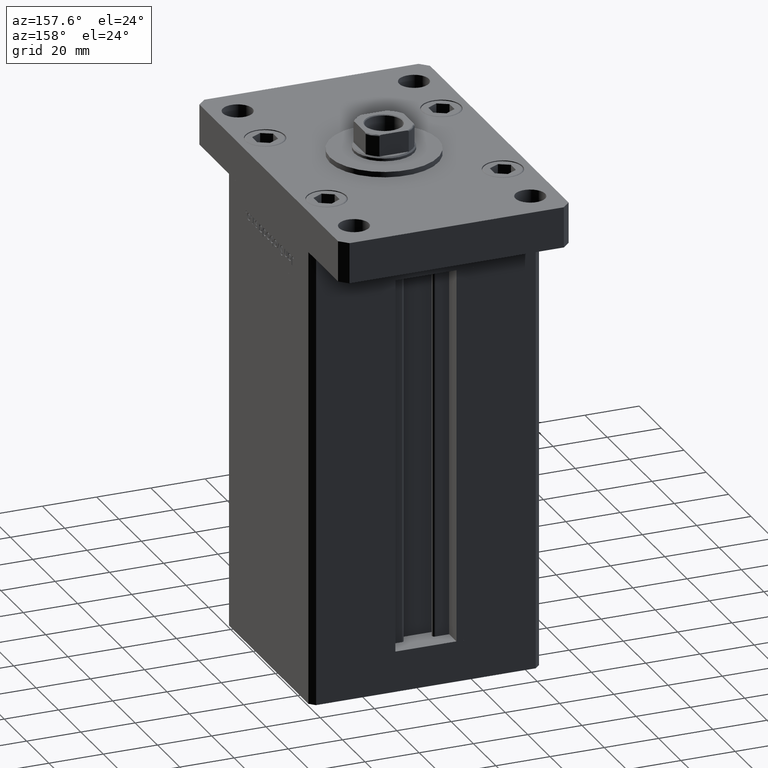
[diagram: clean part render]
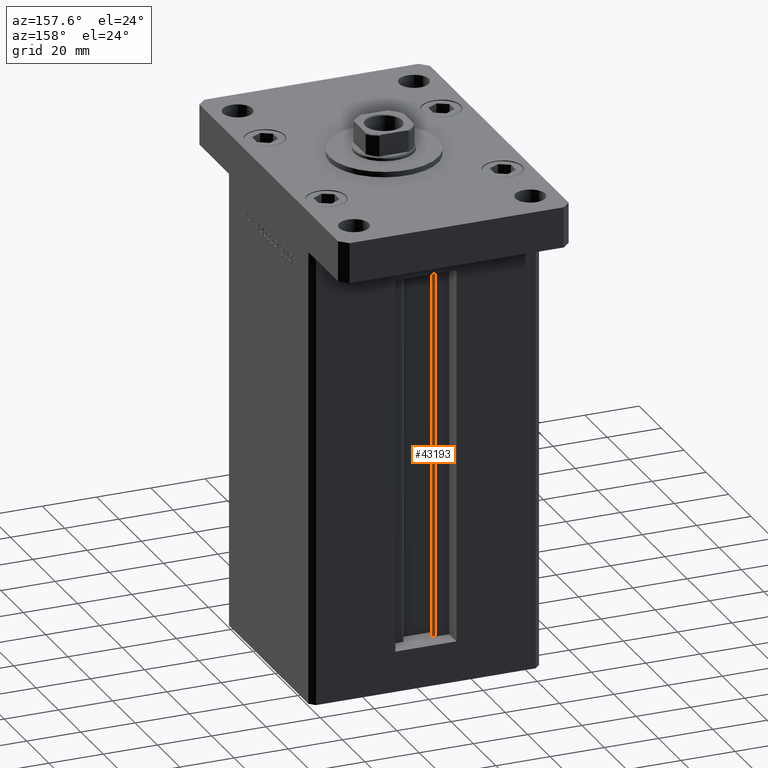
[diagram: same view with one face highlighted and labeled with its STEP entity id]
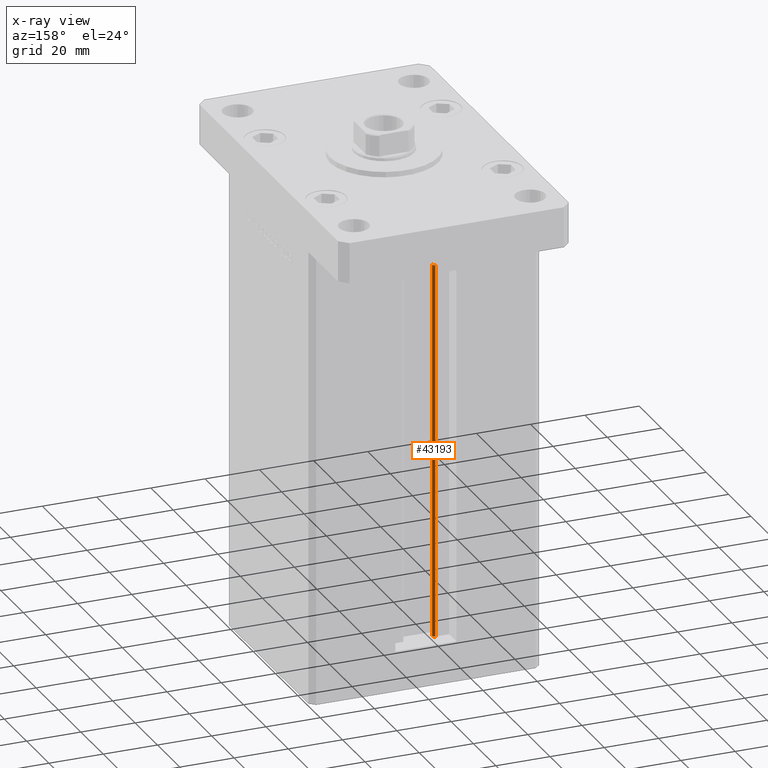
[diagram: x-ray of the same camera — body ghosted, the highlighted face saturated]
A machine part, auxiliary view. The second image highlights one B-rep face of the part: STEP entity #43193.
The next image is the same camera in x-ray: the body ghosted, the highlighted face saturated — about 1% of this face is hidden behind the body in this view.
In plain terms, the highlighted cylindrical surface (edge-blend (fillet) strip) has radius 0.9333 mm, axis along (0, 0, 1).
Its self-contained STEP definition (entity closure, byte-faithful):
#1635 = VERTEX_POINT ( 'NONE', #4816 ) ;
#3248 = EDGE_LOOP ( 'NONE', ( #53466, #21362, #9703, #36015 ) ) ;
#4150 = CARTESIAN_POINT ( 'NONE',  ( -5.249999999999997335, 30.06666666666599141, 0.000000000000000000 ) ) ;
#4534 = DIRECTION ( 'NONE',  ( -0.000000000000000000, -0.000000000000000000, 1.000000000000000000 ) ) ;
#4591 = FACE_OUTER_BOUND ( 'NONE', #3248, .T. ) ;
#4816 = CARTESIAN_POINT ( 'NONE',  ( -6.183333333333999704, 30.99999999999999289, 138.5000000000000000 ) ) ;
#5064 = LINE ( 'NONE', #8602, #12028 ) ;
#7142 = VERTEX_POINT ( 'NONE', #39980 ) ;
#8602 = CARTESIAN_POINT ( 'NONE',  ( -5.249999999999997335, 30.06666666666599141, 0.000000000000000000 ) ) ;
#9703 = ORIENTED_EDGE ( 'NONE', *, *, #32265, .T. ) ;
#10996 = EDGE_CURVE ( 'NONE', #1635, #52840, #20997, .T. ) ;
#12028 = VECTOR ( 'NONE', #4534, 1000.000000000000000 ) ;
#13541 = CYLINDRICAL_SURFACE ( 'NONE', #36693, 0.9333333333340015914 ) ;
#15675 = CARTESIAN_POINT ( 'NONE',  ( -6.183333333333999704, 30.99999999999999289, 0.000000000000000000 ) ) ;
#15902 = EDGE_CURVE ( 'NONE', #7142, #30361, #46263, .T. ) ;
#17102 = CARTESIAN_POINT ( 'NONE',  ( -6.183333333333999704, 30.06666666666599141, 0.000000000000000000 ) ) ;
#17503 = DIRECTION ( 'NONE',  ( 1.000000000000000000, 0.000000000000000000, 0.000000000000000000 ) ) ;
#17600 = DIRECTION ( 'NONE',  ( 0.000000000000000000, 0.000000000000000000, -1.000000000000000000 ) ) ;
#18391 = DIRECTION ( 'NONE',  ( 1.000000000000000000, 0.000000000000000000, 0.000000000000000000 ) ) ;
#19480 = DIRECTION ( 'NONE',  ( -0.000000000000000000, -0.000000000000000000, 1.000000000000000000 ) ) ;
#20997 = CIRCLE ( 'NONE', #31418, 0.9333333333340015914 ) ;
#21168 = DIRECTION ( 'NONE',  ( -0.000000000000000000, -0.000000000000000000, 1.000000000000000000 ) ) ;
#21362 = ORIENTED_EDGE ( 'NONE', *, *, #15902, .F. ) ;
#30361 = VERTEX_POINT ( 'NONE', #4150 ) ;
#31418 = AXIS2_PLACEMENT_3D ( 'NONE', #50681, #17600, #18391 ) ;
#32265 = EDGE_CURVE ( 'NONE', #7142, #1635, #52296, .T. ) ;
#33137 = EDGE_CURVE ( 'NONE', #30361, #52840, #5064, .T. ) ;
#33335 = CARTESIAN_POINT ( 'NONE',  ( -5.249999999999997335, 30.06666666666599141, 138.5000000000000000 ) ) ;
#34574 = DIRECTION ( 'NONE',  ( -0.000000000000000000, -0.000000000000000000, -1.000000000000000000 ) ) ;
#36015 = ORIENTED_EDGE ( 'NONE', *, *, #10996, .T. ) ;
#36693 = AXIS2_PLACEMENT_3D ( 'NONE', #17102, #21168, #50433 ) ;
#37137 = VECTOR ( 'NONE', #19480, 1000.000000000000000 ) ;
#39980 = CARTESIAN_POINT ( 'NONE',  ( -6.183333333333999704, 30.99999999999999289, 0.000000000000000000 ) ) ;
#41646 = CARTESIAN_POINT ( 'NONE',  ( -6.183333333333999704, 30.06666666666599141, 0.000000000000000000 ) ) ;
#43193 = ADVANCED_FACE ( 'NONE', ( #4591 ), #13541, .T. ) ;
#44522 = AXIS2_PLACEMENT_3D ( 'NONE', #41646, #34574, #17503 ) ;
#46263 = CIRCLE ( 'NONE', #44522, 0.9333333333340015914 ) ;
#50433 = DIRECTION ( 'NONE',  ( 1.000000000000000000, 0.000000000000000000, 0.000000000000000000 ) ) ;
#50681 = CARTESIAN_POINT ( 'NONE',  ( -6.183333333333999704, 30.06666666666599141, 138.5000000000000000 ) ) ;
#52296 = LINE ( 'NONE', #15675, #37137 ) ;
#52840 = VERTEX_POINT ( 'NONE', #33335 ) ;
#53466 = ORIENTED_EDGE ( 'NONE', *, *, #33137, .F. ) ;